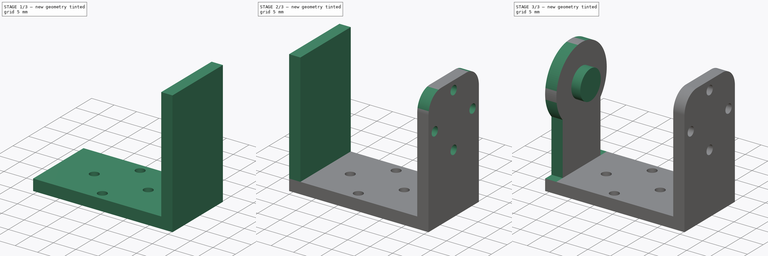
[diagram: build sequence overview — one tinted view per stage of 3, left to right]
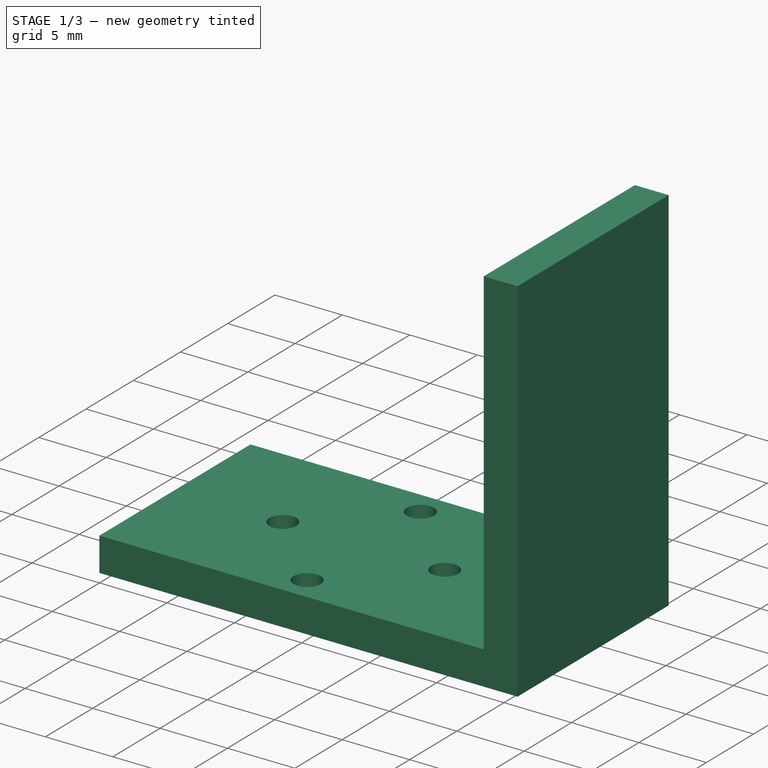
[diagram: stage 1 of 3 — iso view after this stage's code; geometry added in this stage tinted green]
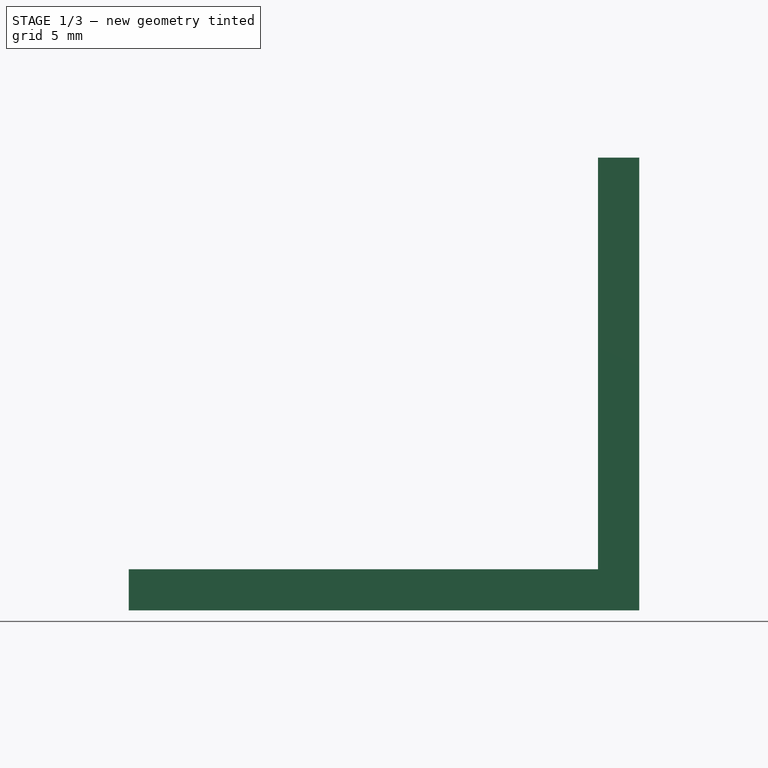
[diagram: stage 1 of 3 — front view after this stage's code; geometry added in this stage tinted green]
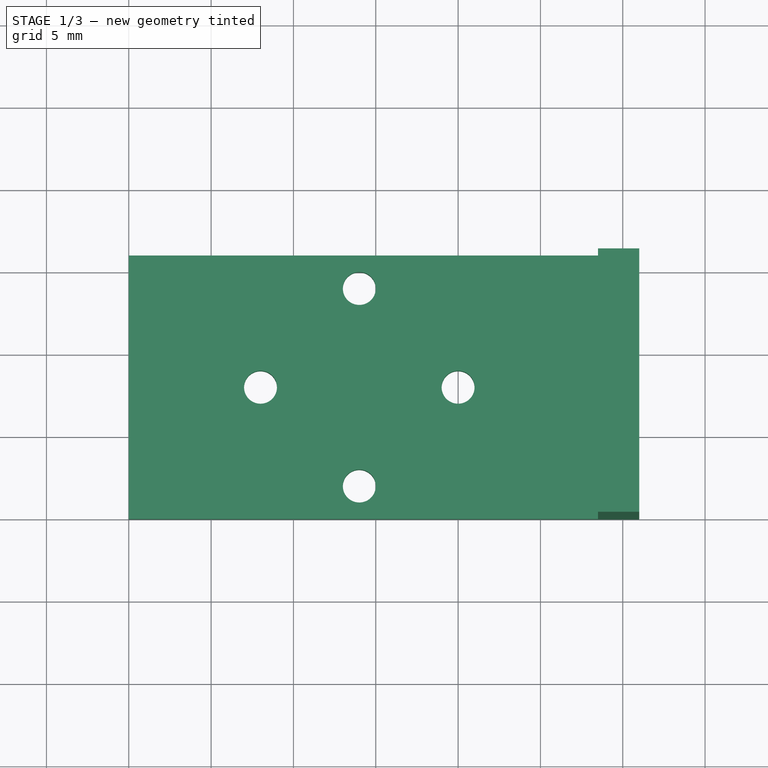
[diagram: stage 1 of 3 — top view after this stage's code; geometry added in this stage tinted green]
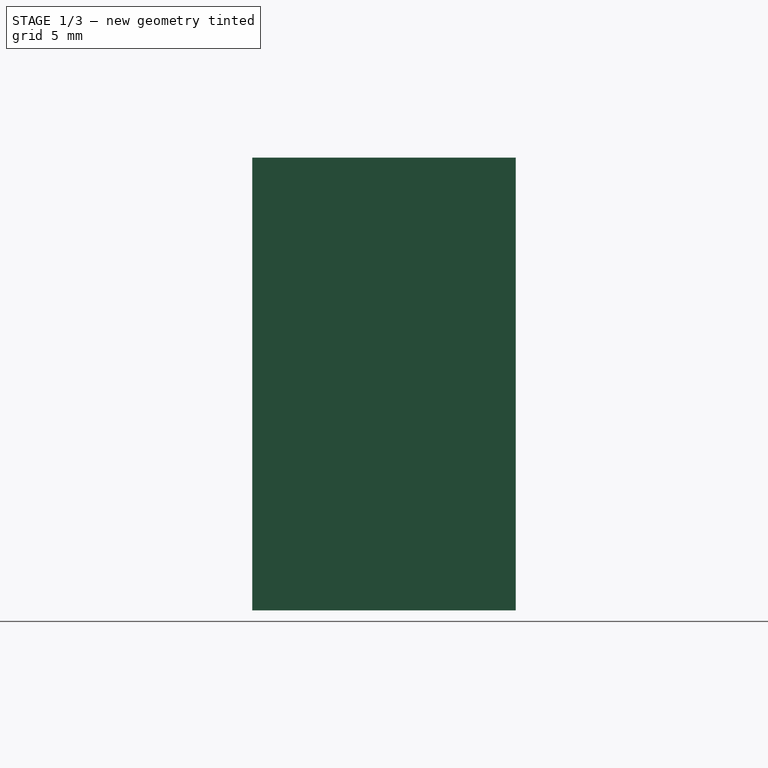
[diagram: stage 1 of 3 — right view after this stage's code; geometry added in this stage tinted green]
FCSTD DOCUMENT  (FreeCAD 0.20R29603 (Git))
Label: TiltAdapterGripperV1
License: All rights reserved
LicenseURL: http://en.wikipedia.org/wiki/All_rights_reserved
objects: Sketcher::SketchObject×6, PartDesign::Pad×4, PartDesign::Pocket×2, PartDesign::Body×1
note: 19 computed .brp shape members not serialized (recipe doc carries the construction recipe); baked Part::Feature solids carry a one-line shape summary decoded from their .brp

FEATURE [Sketcher::SketchObject] Sketch
  FullyConstrained = true
  MapMode = 5
  Support = -> [XY_Plane]
  sketch-geometry (9):
    g0: LineSegment StartX=0 StartY=0 StartZ=0 EndX=31 EndY=0 EndZ=0
    g1: LineSegment StartX=31 StartY=0 StartZ=0 EndX=31 EndY=16 EndZ=0
    g2: LineSegment StartX=31 StartY=16 StartZ=0 EndX=0 EndY=16 EndZ=0
    g3: LineSegment StartX=0 StartY=16 StartZ=0 EndX=0 EndY=0 EndZ=0
    g4: Circle CenterX=14 CenterY=14 CenterZ=0 NormalX=0 NormalY=0 NormalZ=1 AngleXU=0 Radius=1
    g5: Circle CenterX=8 CenterY=8 CenterZ=0 NormalX=0 NormalY=0 NormalZ=1 AngleXU=0 Radius=1
    g6: Circle CenterX=14 CenterY=2 CenterZ=0 NormalX=0 NormalY=0 NormalZ=1 AngleXU=0 Radius=1
    g7: Circle CenterX=20 CenterY=8 CenterZ=0 NormalX=0 NormalY=0 NormalZ=1 AngleXU=0 Radius=1
    g8: GeomPoint X=14 Y=8 Z=0
  constraints (25):
    c: Coincident(g0,g1)
    c: Coincident(g1,g2)
    c: Coincident(g2,g3)
    c: Coincident(g3,g0)
    c: Horizontal(g0)
    c: Horizontal(g2)
    c: Vertical(g1)
    c: Vertical(g3)
    c: Coincident(g0,g-1)
    c: DistanceX(g2,g2) = 31
    c: DistanceY(g1,g1) = 16
    c: DistanceX(g5,g8) = 6
    c: DistanceX(g4,g8) = 0
    c: DistanceX(g6,g8) = 0
    c: DistanceX(g8,g7) = 6
    c: DistanceY(g8,g4) = 6
    c: DistanceY(g6,g8) = 6
    c: DistanceY(g5,g8) = 0
    c: DistanceY(g7,g8) = 0
    c: DistanceY(g0,g8) = 8
    c: Diameter(g4) = 2
    c: Diameter(g7) = 2
    c: Diameter(g6) = 2
    c: Diameter(g5) = 2
    c: DistanceX(g0,g8) = 14
FEATURE [PartDesign::Pad] Pad
  Direction = (0,0,1)
  Length = 2.5
  Length2 = 10
  Profile = -> Sketch
  ReferenceAxis = -> Sketch [N_Axis]
  Type = 0
FEATURE [Sketcher::SketchObject] Sketch001
  ExternalGeometry = -> [Pad]
  FullyConstrained = true
  MapMode = 5
  Placement = pos=(0,0,2.5) rot=(0,0,1;0rad)
  Support = -> [Pad]
  sketch-geometry (4):
    g0: LineSegment StartX=31 StartY=16 StartZ=0 EndX=28.5 EndY=16 EndZ=0
    g1: LineSegment StartX=28.5 StartY=16 StartZ=0 EndX=28.5 EndY=0 EndZ=0
    g2: LineSegment StartX=28.5 StartY=0 StartZ=0 EndX=31 EndY=0 EndZ=0
    g3: LineSegment StartX=31 StartY=0 StartZ=0 EndX=31 EndY=16 EndZ=0
  constraints (12):
    c: Coincident(g0,g1)
    c: Coincident(g1,g2)
    c: Coincident(g2,g3)
    c: Coincident(g3,g0)
    c: Horizontal(g0)
    c: Horizontal(g2)
    c: Vertical(g1)
    c: Vertical(g3)
    c: DistanceX(g0,g0) = 2.5
    c: DistanceX(g0,g-3) = 0
    c: DistanceY(g0,g-3) = 0
    c: DistanceY(g-3,g2) = 0
FEATURE [PartDesign::Pad] Pad001
  BaseFeature = -> Pad
  Direction = (0,0,1)
  Length = 25
  Length2 = 10
  Profile = -> Sketch001
  ReferenceAxis = -> Sketch001 [N_Axis]
  Type = 0
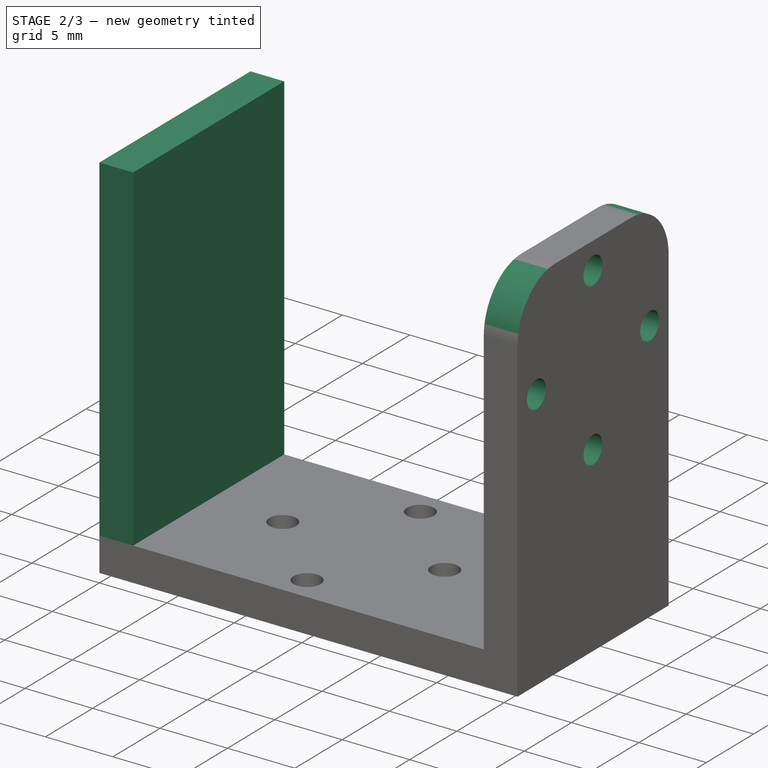
[diagram: stage 2 of 3 — iso view after this stage's code; geometry added in this stage tinted green]
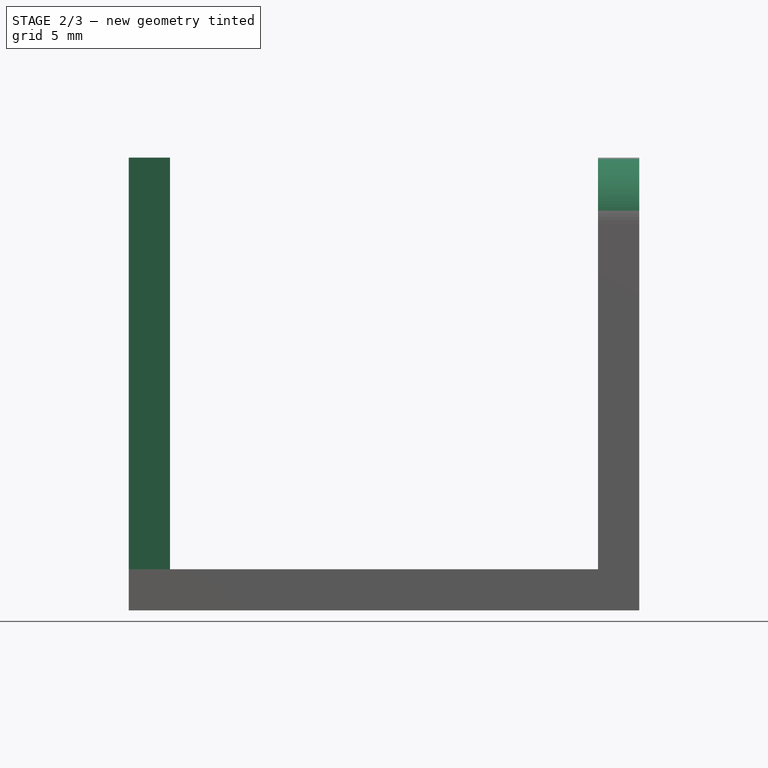
[diagram: stage 2 of 3 — front view after this stage's code; geometry added in this stage tinted green]
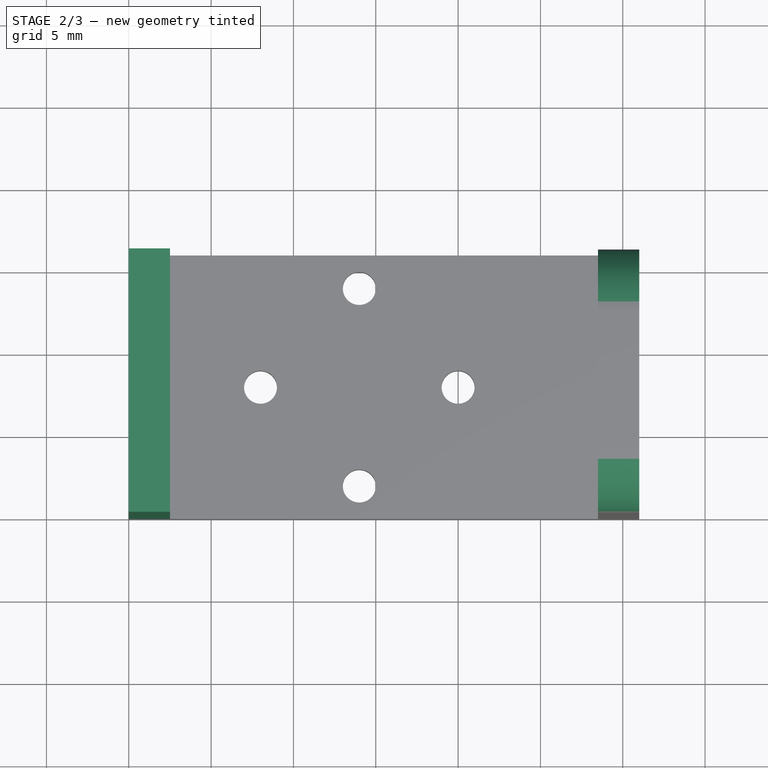
[diagram: stage 2 of 3 — top view after this stage's code; geometry added in this stage tinted green]
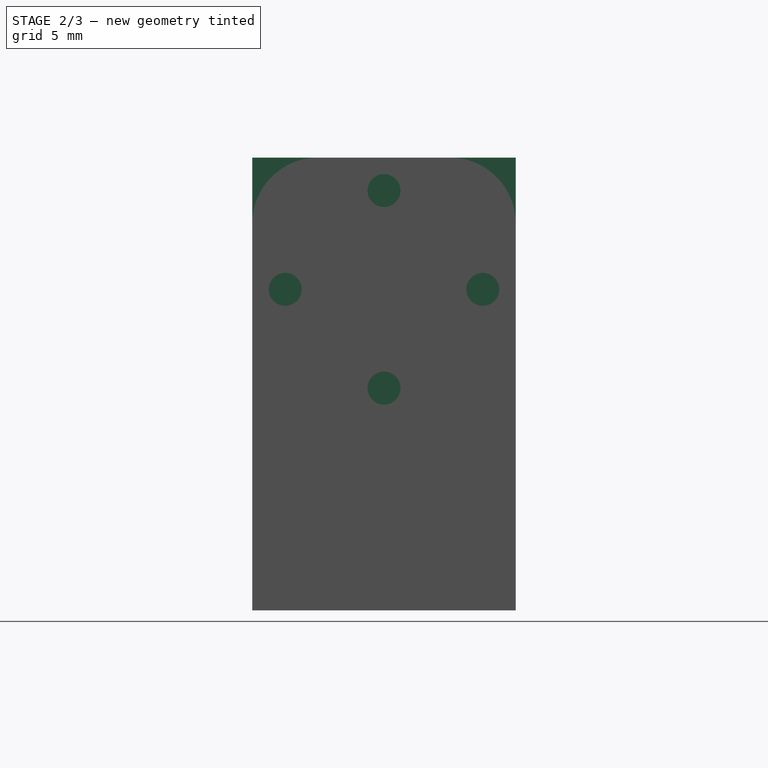
[diagram: stage 2 of 3 — right view after this stage's code; geometry added in this stage tinted green]
FEATURE [Sketcher::SketchObject] Sketch002
  ExternalGeometry = -> [Pad001]
  FullyConstrained = true
  MapMode = 5
  Placement = pos=(31,0,0) rot=(0.57735,0.57735,0.57735;2.0944rad)
  Support = -> [Pad001]
  sketch-geometry (15):
    g0: Circle CenterX=8 CenterY=25.5 CenterZ=0 NormalX=0 NormalY=0 NormalZ=1 AngleXU=0 Radius=1
    g1: Circle CenterX=2 CenterY=19.5 CenterZ=0 NormalX=0 NormalY=0 NormalZ=1 AngleXU=0 Radius=1
    g2: Circle CenterX=14 CenterY=19.5 CenterZ=0 NormalX=0 NormalY=0 NormalZ=1 AngleXU=0 Radius=1
    g3: Circle CenterX=8 CenterY=13.5 CenterZ=0 NormalX=0 NormalY=0 NormalZ=1 AngleXU=0 Radius=1
    g4: GeomPoint X=8 Y=19.5 Z=0
    g5: ArcOfCircle CenterX=4 CenterY=23.5 CenterZ=0 NormalX=0 NormalY=0 NormalZ=1 AngleXU=0 Radius=4 StartAngle=1.5708 EndAngle=3.14159
    g6: ArcOfCircle CenterX=12 CenterY=23.5 CenterZ=0 NormalX=0 NormalY=0 NormalZ=1 AngleXU=0 Radius=4 StartAngle=0 EndAngle=1.5708
    g7: LineSegment StartX=-2 StartY=29.5 StartZ=0 EndX=4 EndY=29.5 EndZ=0
    g8: LineSegment StartX=4 StartY=29.5 StartZ=0 EndX=4 EndY=27.5 EndZ=0
    g9: LineSegment StartX=0 StartY=23.5 StartZ=0 EndX=-2 EndY=23.5 EndZ=0
    g10: LineSegment StartX=-2 StartY=23.5 StartZ=0 EndX=-2 EndY=29.5 EndZ=0
    g11: LineSegment StartX=18 StartY=29.5 StartZ=0 EndX=12 EndY=29.5 EndZ=0
    g12: LineSegment StartX=12 StartY=29.5 StartZ=0 EndX=12 EndY=27.5 EndZ=0
    g13: LineSegment StartX=16 StartY=23.5 StartZ=0 EndX=18 EndY=23.5 EndZ=0
    g14: LineSegment StartX=18 StartY=23.5 StartZ=0 EndX=18 EndY=29.5 EndZ=0
  constraints (46):
    c: Diameter(g2) = 2
    c: Diameter(g3) = 2
    c: Diameter(g1) = 2
    c: Diameter(g0) = 2
    c: DistanceY(g4,g0) = 6
    c: DistanceY(g3,g4) = 6
    c: DistanceY(g4,g1) = 0
    c: DistanceY(g4,g2) = 0
    c: DistanceY(g4,g-3) = 8
    c: DistanceX(g4,g-3) = 8
    c: DistanceX(g0,g4) = 0
    c: DistanceX(g3,g4) = 0
    c: DistanceX(g4,g2) = 6
    c: DistanceX(g1,g3) = 6
    c: Coincident(g7,g8)
    c: Coincident(g9,g10)
    c: Coincident(g10,g7)
    c: Horizontal(g7)
    c: Horizontal(g9)
    c: Vertical(g8)
    c: Vertical(g10)
    c: Coincident(g11,g12)
    c: Coincident(g13,g14)
    c: Coincident(g14,g11)
    c: Horizontal(g11)
    c: Horizontal(g13)
    c: Vertical(g12)
    c: Vertical(g14)
    c: Coincident(g8,g5)
    c: Coincident(g9,g5)
    c: Coincident(g12,g6)
    c: Coincident(g13,g6)
    c: DistanceX(g-3,g5) = 4
    c: DistanceX(g5,g5) = 0
    c: DistanceY(g5,g-3) = 4
    c: DistanceY(g5,g5) = 0
    c: Diameter(g5) = 8
    c: DistanceY(g8,g8) = 2
    c: DistanceX(g9,g9) = 2
    c: DistanceX(g6,g-3) = 4
    c: DistanceX(g6,g6) = 0
    c: DistanceY(g6,g-3) = 4
    c: DistanceY(g6,g6) = 0
    c: Diameter(g6) = 8
    c: DistanceX(g13,g13) = 2
    c: DistanceY(g12,g12) = 2
FEATURE [PartDesign::Pocket] Pocket
  BaseFeature = -> Pad001
  Direction = (-1,0,0)
  Length = 5
  Length2 = 5
  Profile = -> Sketch002
  ReferenceAxis = -> Sketch002 [N_Axis]
  Type = 0
FEATURE [Sketcher::SketchObject] Sketch003
  ExternalGeometry = -> [Pocket]
  FullyConstrained = true
  MapMode = 5
  Placement = pos=(0,0,2.5) rot=(0,0,1;0rad)
  Support = -> [Pocket]
  sketch-geometry (4):
    g0: LineSegment StartX=0 StartY=16 StartZ=0 EndX=2.5 EndY=16 EndZ=0
    g1: LineSegment StartX=2.5 StartY=16 StartZ=0 EndX=2.5 EndY=0 EndZ=0
    g2: LineSegment StartX=2.5 StartY=0 StartZ=0 EndX=0 EndY=0 EndZ=0
    g3: LineSegment StartX=0 StartY=0 StartZ=0 EndX=0 EndY=16 EndZ=0
  constraints (11):
    c: Coincident(g0,g1)
    c: Coincident(g1,g2)
    c: Coincident(g2,g3)
    c: Coincident(g3,g0)
    c: Horizontal(g0)
    c: Horizontal(g2)
    c: Vertical(g1)
    c: Vertical(g3)
    c: DistanceX(g0,g0) = 2.5
    c: DistanceY(g0,g-3) = 0
    c: Coincident(g-3,g2)
FEATURE [PartDesign::Pad] Pad002
  BaseFeature = -> Pocket
  Direction = (0,0,1)
  Length = 25
  Length2 = 10
  Profile = -> Sketch003
  ReferenceAxis = -> Sketch003 [N_Axis]
  Type = 0
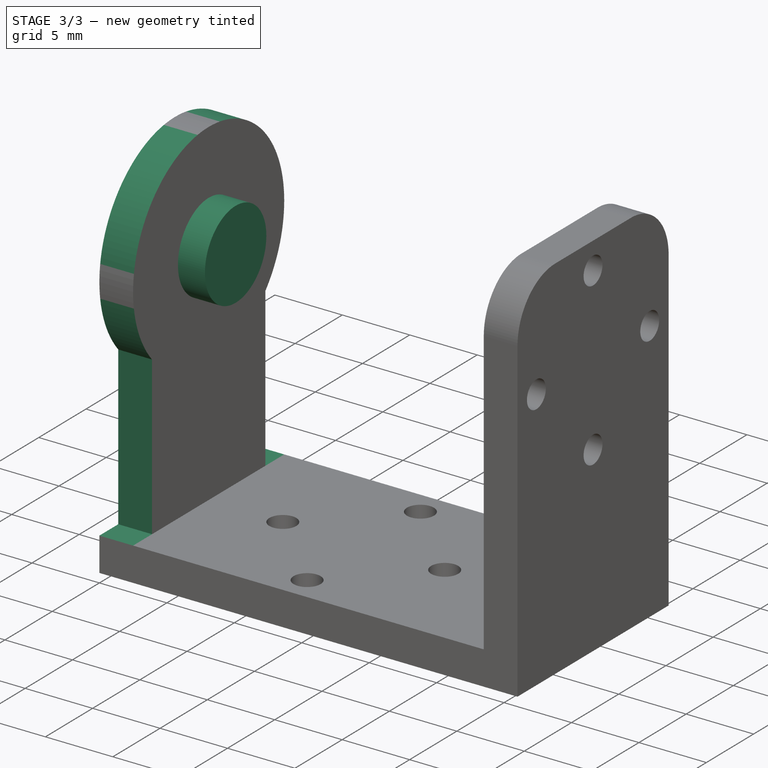
[diagram: stage 3 of 3 — iso view after this stage's code; geometry added in this stage tinted green]
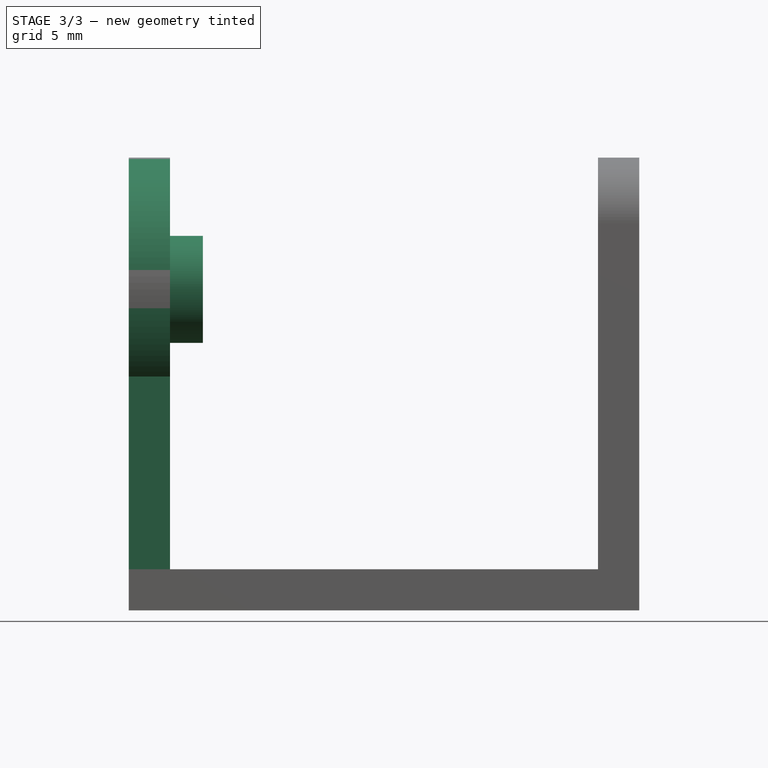
[diagram: stage 3 of 3 — front view after this stage's code; geometry added in this stage tinted green]
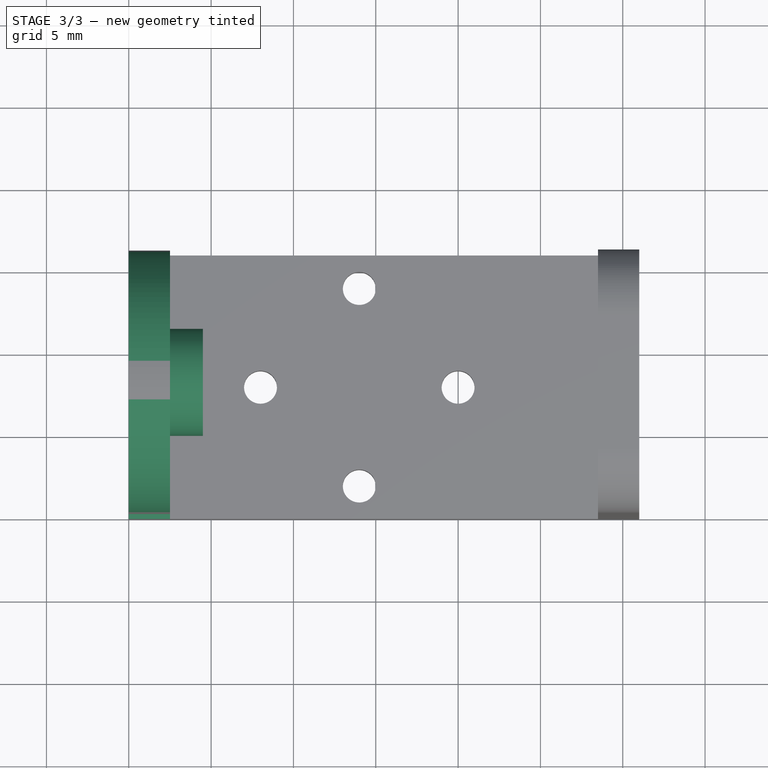
[diagram: stage 3 of 3 — top view after this stage's code; geometry added in this stage tinted green]
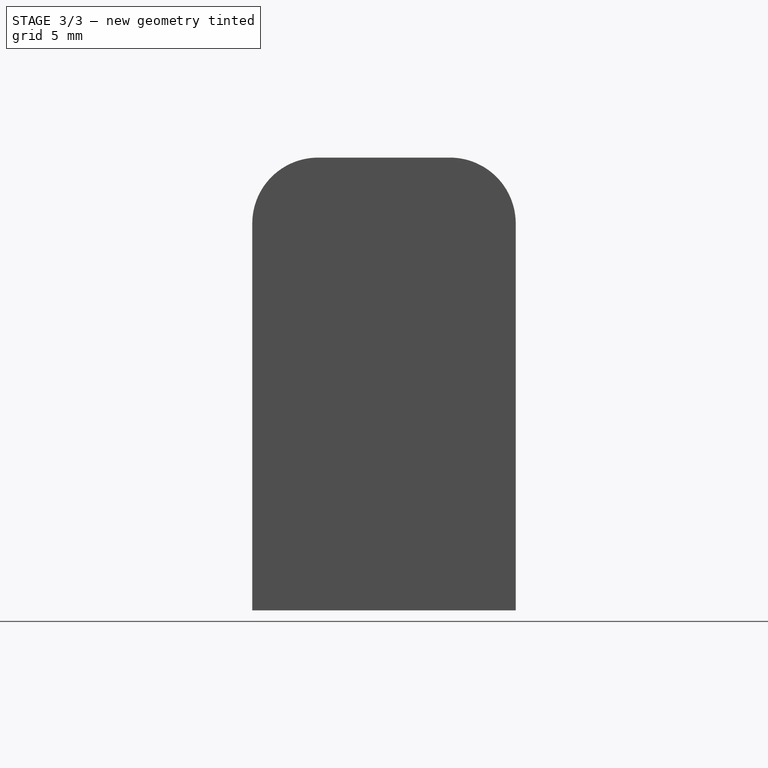
[diagram: stage 3 of 3 — right view after this stage's code; geometry added in this stage tinted green]
FEATURE [Sketcher::SketchObject] Sketch004
  ExternalGeometry = -> [Pad002]
  FullyConstrained = true
  MapMode = 5
  Placement = pos=(0,0,0) rot=(0.57735,-0.57735,-0.57735;2.0944rad)
  Support = -> [Pad002]
  sketch-geometry (8):
    g0: ArcOfCircle CenterX=-8 CenterY=19.5 CenterZ=0 NormalX=0 NormalY=0 NormalZ=1 AngleXU=0 Radius=8 StartAngle=5.56045 EndAngle=10.1475
    g1: LineSegment StartX=-18 StartY=29.5 StartZ=0 EndX=2 EndY=29.5 EndZ=0
    g2: LineSegment StartX=2 StartY=29.5 StartZ=0 EndX=2 EndY=2.5 EndZ=0
    g3: LineSegment StartX=-18 StartY=2.5 StartZ=0 EndX=-18 EndY=29.5 EndZ=0
    g4: LineSegment StartX=-14 StartY=14.2085 StartZ=0 EndX=-14 EndY=2.5 EndZ=0
    g5: LineSegment StartX=-14 StartY=2.5 StartZ=0 EndX=-18 EndY=2.5 EndZ=0
    g6: LineSegment StartX=-2 StartY=14.2085 StartZ=0 EndX=-2 EndY=2.5 EndZ=0
    g7: LineSegment StartX=-2 StartY=2.5 StartZ=0 EndX=2 EndY=2.5 EndZ=0
  constraints (25):
    c: Diameter(g0) = 16
    c: DistanceX(g0,g-3) = 8
    c: DistanceX(g0,g0) = 12
    c: DistanceY(g0,g0) = 0
    c: DistanceY(g0,g-3) = 8
    c: Coincident(g1,g2)
    c: Coincident(g3,g1)
    c: Horizontal(g1)
    c: Vertical(g2)
    c: Vertical(g3)
    c: Coincident(g4,g0)
    c: Vertical(g4)
    c: Coincident(g5,g4)
    c: Horizontal(g5)
    c: Vertical(g6)
    c: Coincident(g7,g6)
    c: Horizontal(g7)
    c: Coincident(g5,g3)
    c: Coincident(g2,g7)
    c: DistanceX(g1,g-3) = 2
    c: DistanceX(g-3,g1) = 2
    c: DistanceY(g-3,g1) = 2
    c: DistanceY(g-4,g4) = 0
    c: Coincident(g6,g0)
    c: DistanceY(g-4,g6) = 0
FEATURE [PartDesign::Pocket] Pocket001
  BaseFeature = -> Pad002
  Direction = (1,0,0)
  Length = 5
  Length2 = 5
  Profile = -> Sketch004
  ReferenceAxis = -> Sketch004 [N_Axis]
  Type = 0
FEATURE [Sketcher::SketchObject] Sketch005
  ExternalGeometry = -> [Pocket001]
  FullyConstrained = true
  MapMode = 5
  Placement = pos=(2.5,0,0) rot=(0.57735,0.57735,0.57735;2.0944rad)
  Support = -> [Pocket001]
  sketch-geometry (1):
    g0: Circle CenterX=8 CenterY=19.5 CenterZ=0 NormalX=0 NormalY=0 NormalZ=1 AngleXU=0 Radius=3.25
  constraints (2):
    c: Coincident(g0,g-3)
    c: Diameter(g0) = 6.5
FEATURE [PartDesign::Pad] Pad003
  BaseFeature = -> Pocket001
  Direction = (1,0,0)
  Length = 2
  Length2 = 10
  Profile = -> Sketch005
  ReferenceAxis = -> Sketch005 [N_Axis]
  Type = 0
FEATURE [PartDesign::Body] Body
  Group = -> [Sketch,Pad,Sketch001,Pad001,Sketch002,Pocket,Sketch003,Pad002,Sketch004,Pocket001,Sketch005,Pad003]
  Origin = -> Origin
  Tip = -> Pad003
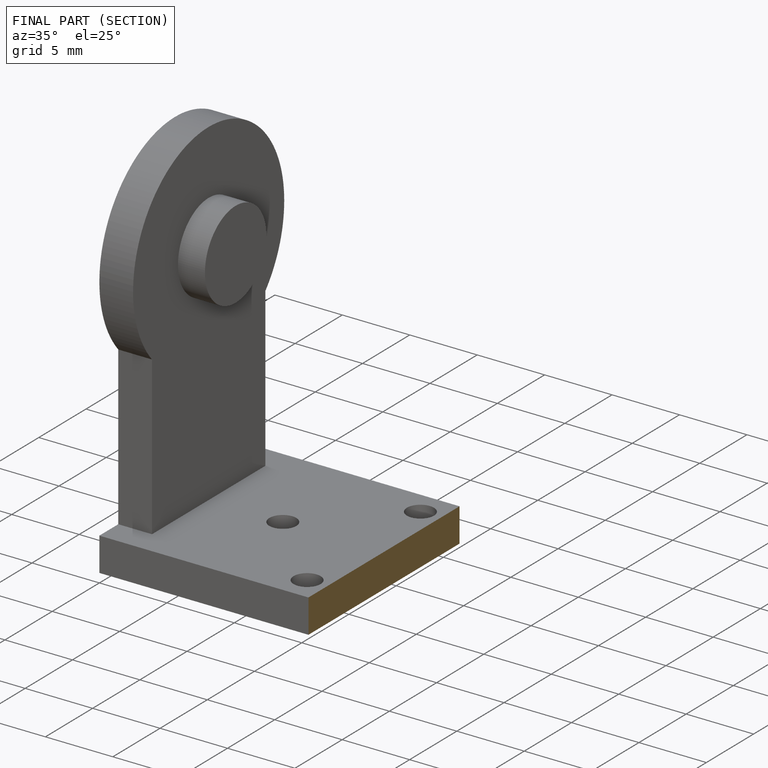
[diagram: finished part — half-section view (interior)]
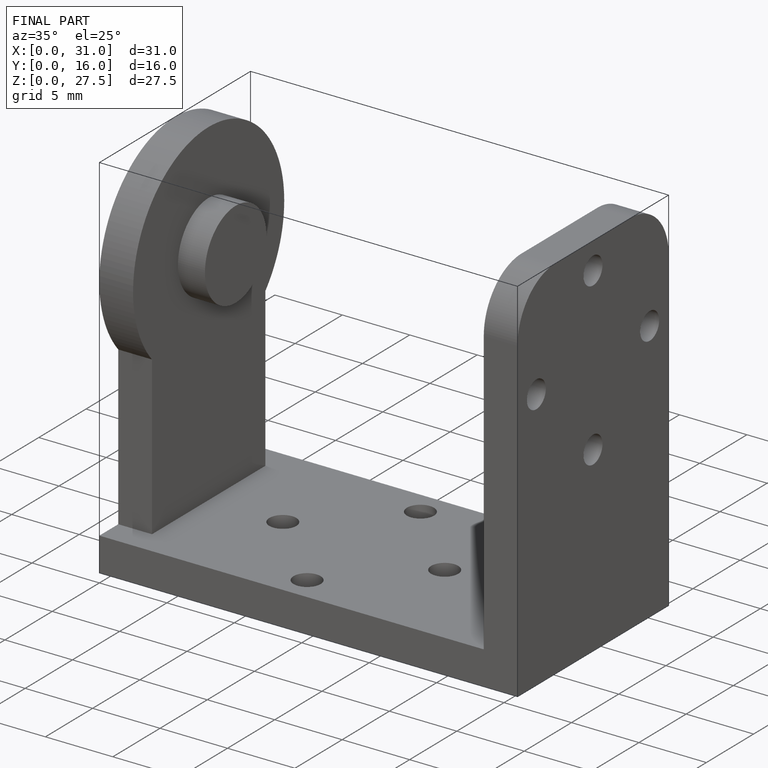
[diagram: finished part — iso view with bounding-box wireframe]
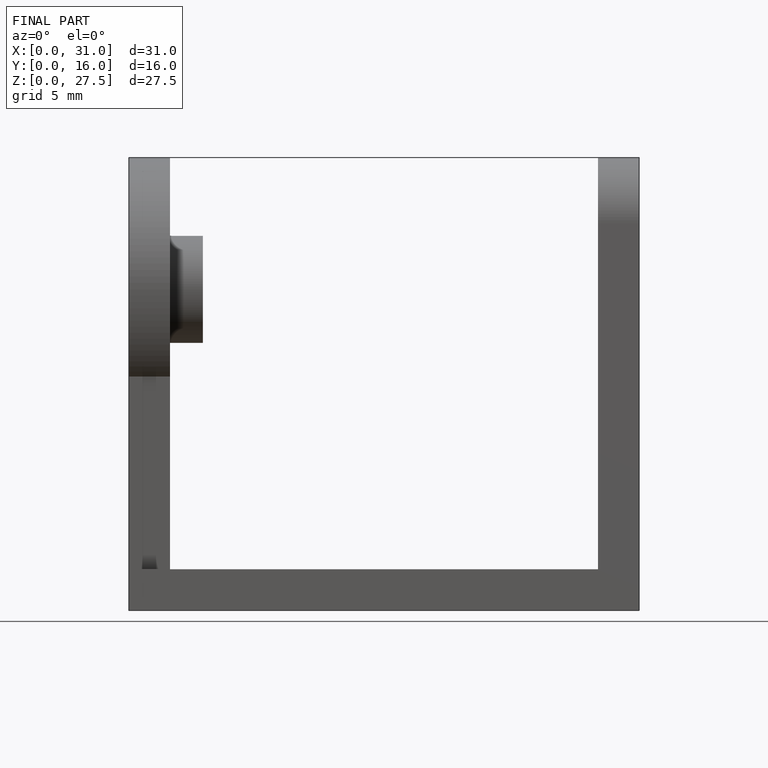
[diagram: finished part — front view with bounding-box wireframe]
